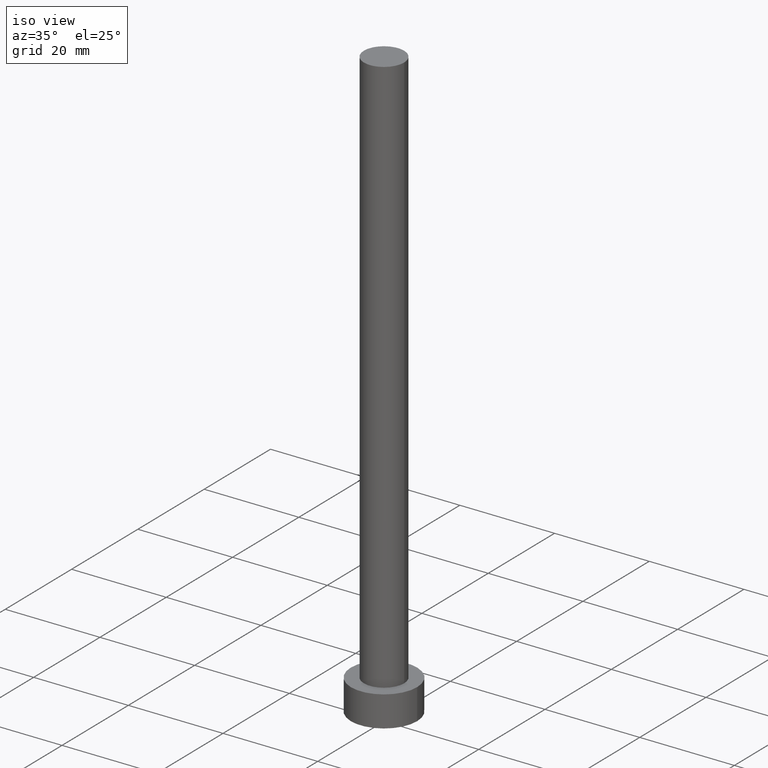
[diagram: clean part render]
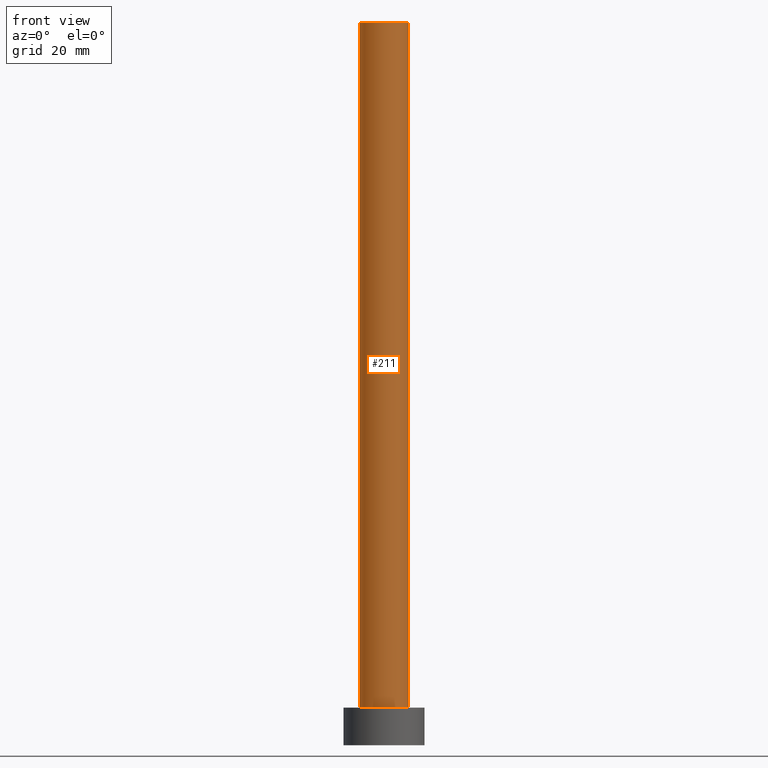
[diagram: tour spotlight — one face highlighted and labeled with its STEP entity id]
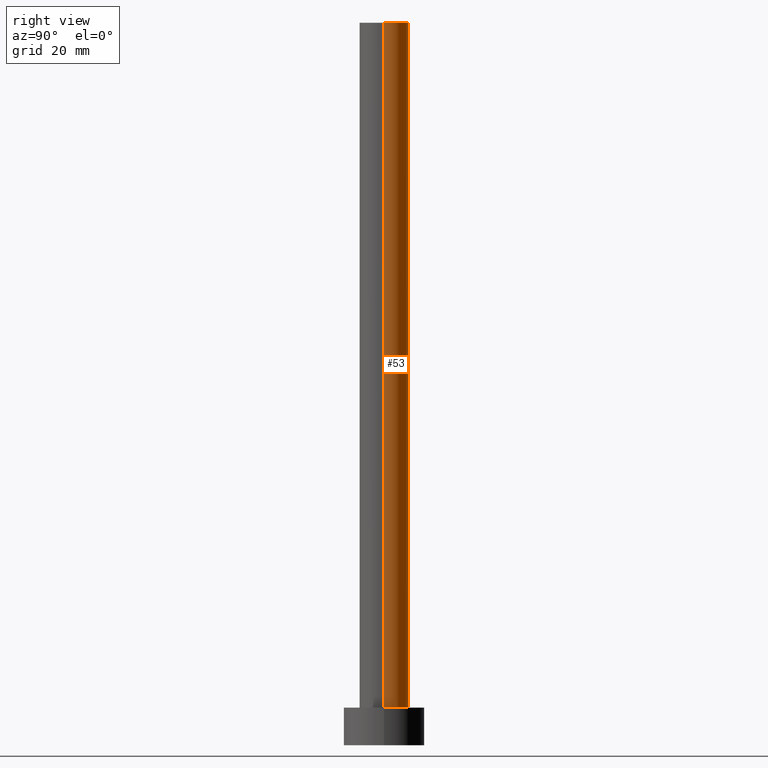
[diagram: tour spotlight — one face highlighted and labeled with its STEP entity id]
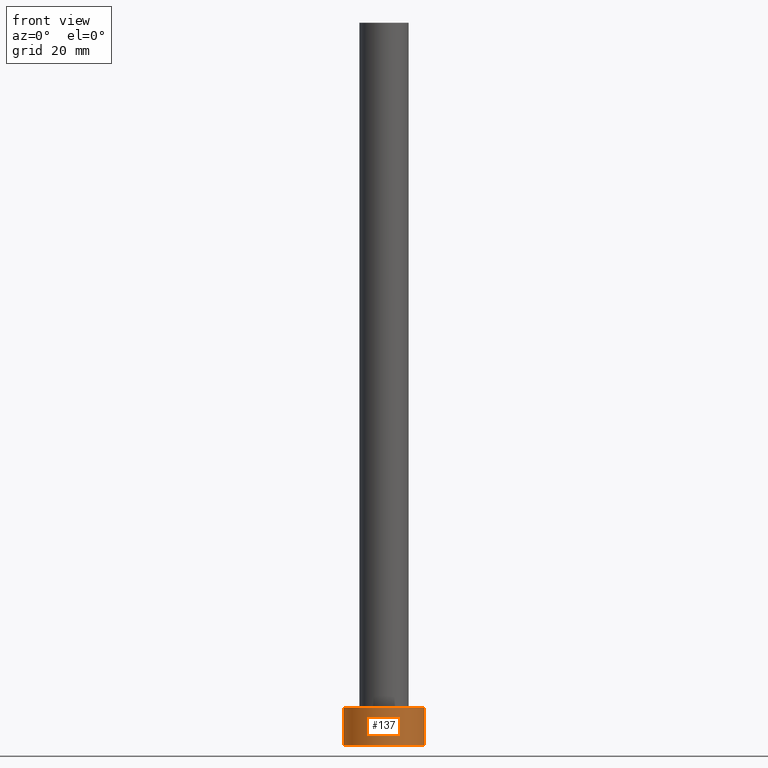
[diagram: tour spotlight — one face highlighted and labeled with its STEP entity id]
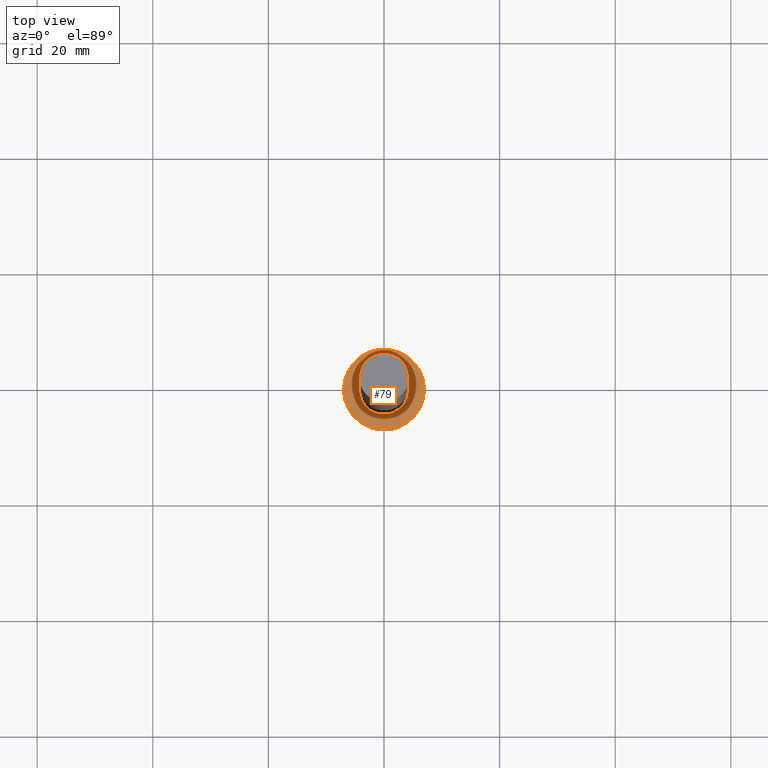
[diagram: tour spotlight — one face highlighted and labeled with its STEP entity id]
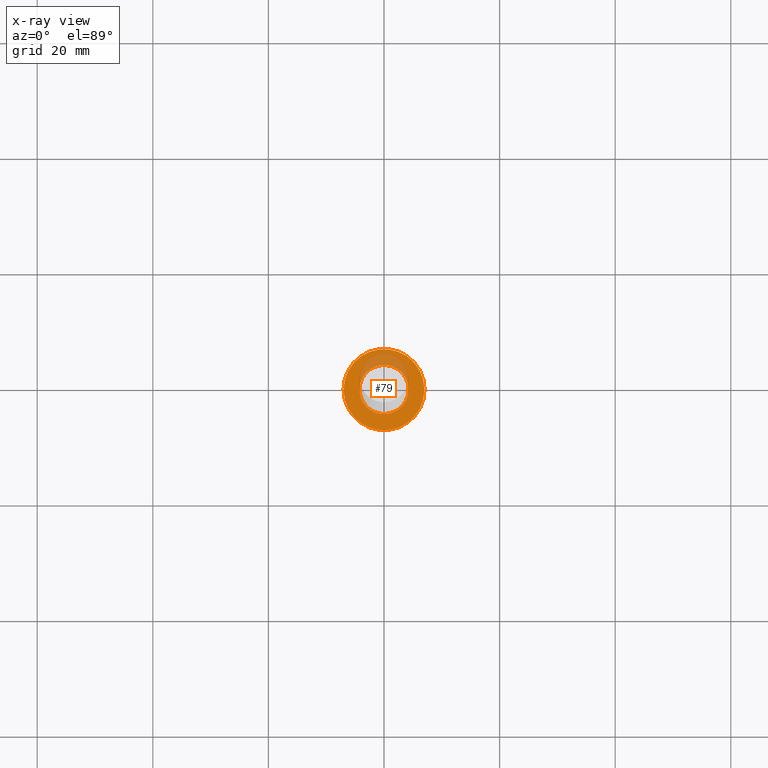
[diagram: x-ray of the same camera — body ghosted, this tour face saturated]
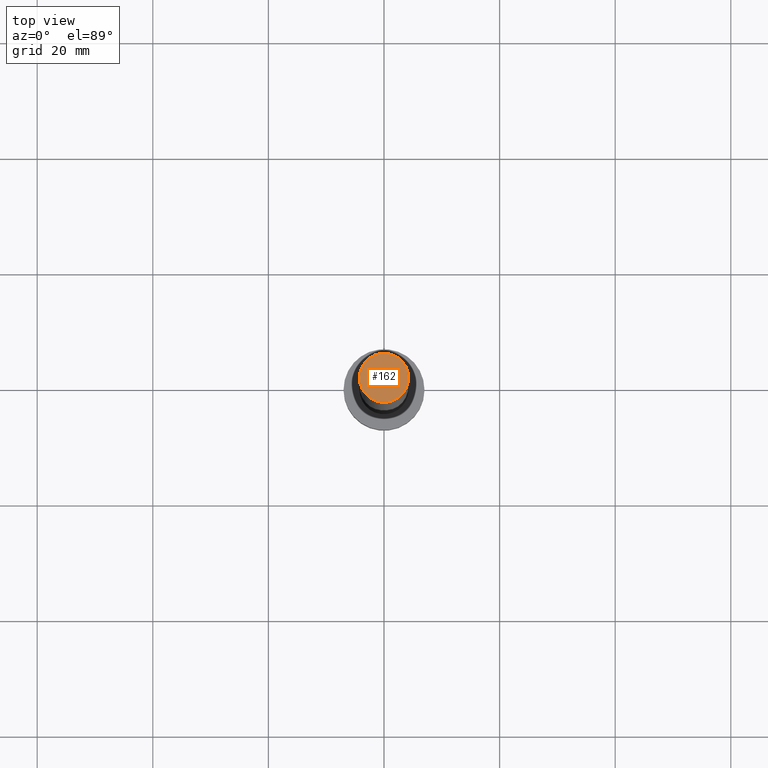
[diagram: tour spotlight — one face highlighted and labeled with its STEP entity id]
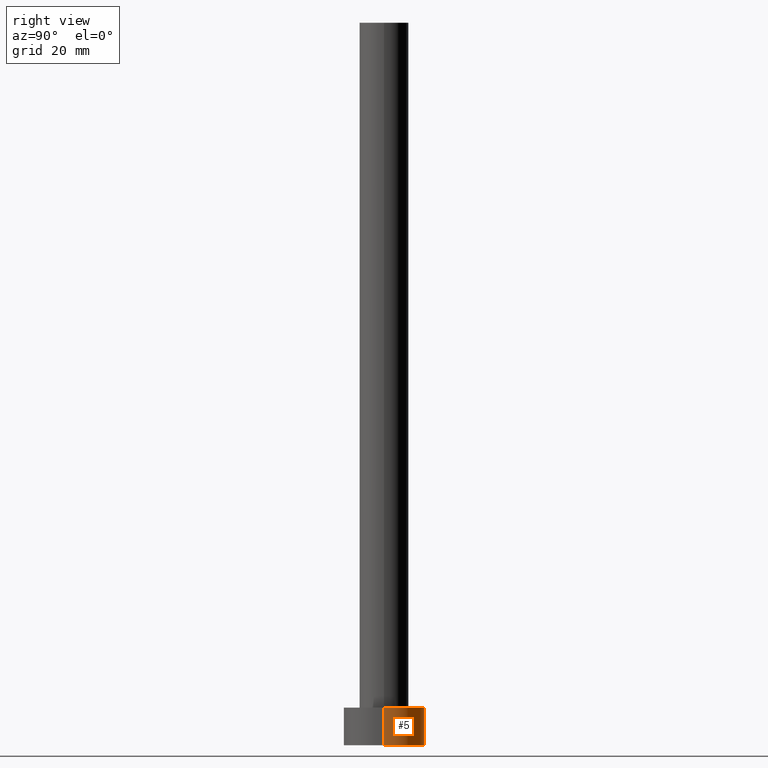
[diagram: tour spotlight — one face highlighted and labeled with its STEP entity id]
A machine part: a face-by-face anatomy tour. The part has 7 B-rep faces; the first image is the clean iso view, then the 6 largest visible faces are spotlighted one at a time (largest first), each with its STEP entity span.

Face 1 — front view, entity #211. In plain terms, the highlighted cylindrical surface (edge-blend (fillet) strip) has radius 4.25 mm, axis along (-0, -0, -1).
Definition (entity closure, byte-faithful):
#14 = DIRECTION ( 'NONE',  ( 0.000000000000000000, 0.000000000000000000, 1.000000000000000000 ) ) ;
#28 = DIRECTION ( 'NONE',  ( -0.000000000000000000, -0.000000000000000000, -1.000000000000000000 ) ) ;
#32 = EDGE_CURVE ( 'NONE', #105, #217, #47, .T. ) ;
#33 = DIRECTION ( 'NONE',  ( 0.000000000000000000, 0.000000000000000000, 1.000000000000000000 ) ) ;
#36 = CARTESIAN_POINT ( 'NONE',  ( -4.250000000000000000, 0.000000000000000000, 125.0000000000000000 ) ) ;
#47 = LINE ( 'NONE', #187, #250 ) ;
#52 = CARTESIAN_POINT ( 'NONE',  ( -4.250000000000000000, 0.000000000000000000, 125.0000000000000000 ) ) ;
#57 = DIRECTION ( 'NONE',  ( -1.000000000000000000, 0.000000000000000000, 0.000000000000000000 ) ) ;
#60 = EDGE_CURVE ( 'NONE', #128, #81, #141, .T. ) ;
#62 = VECTOR ( 'NONE', #28, 1000.000000000000000 ) ;
#70 = CIRCLE ( 'NONE', #197, 4.250000000000000000 ) ;
#76 = CYLINDRICAL_SURFACE ( 'NONE', #100, 4.250000000000000000 ) ;
#81 = VERTEX_POINT ( 'NONE', #94 ) ;
#83 = EDGE_LOOP ( 'NONE', ( #84, #101, #138, #214 ) ) ;
#84 = ORIENTED_EDGE ( 'NONE', *, *, #32, .F. ) ;
#90 = AXIS2_PLACEMENT_3D ( 'NONE', #192, #14, #209 ) ;
#94 = CARTESIAN_POINT ( 'NONE',  ( -4.250000000000000000, 0.000000000000000000, 6.500000000000000000 ) ) ;
#100 = AXIS2_PLACEMENT_3D ( 'NONE', #154, #228, #57 ) ;
#101 = ORIENTED_EDGE ( 'NONE', *, *, #118, .F. ) ;
#105 = VERTEX_POINT ( 'NONE', #148 ) ;
#110 = EDGE_CURVE ( 'NONE', #81, #217, #70, .T. ) ;
#116 = DIRECTION ( 'NONE',  ( 1.000000000000000000, 0.000000000000000000, 0.000000000000000000 ) ) ;
#118 = EDGE_CURVE ( 'NONE', #128, #105, #243, .T. ) ;
#128 = VERTEX_POINT ( 'NONE', #36 ) ;
#130 = DIRECTION ( 'NONE',  ( -0.000000000000000000, -0.000000000000000000, -1.000000000000000000 ) ) ;
#138 = ORIENTED_EDGE ( 'NONE', *, *, #60, .T. ) ;
#141 = LINE ( 'NONE', #52, #62 ) ;
#148 = CARTESIAN_POINT ( 'NONE',  ( 4.250000000000000000, 5.204748896376250699E-16, 125.0000000000000000 ) ) ;
#153 = CARTESIAN_POINT ( 'NONE',  ( 0.000000000000000000, 0.000000000000000000, 6.500000000000000000 ) ) ;
#154 = CARTESIAN_POINT ( 'NONE',  ( 0.000000000000000000, 0.000000000000000000, 125.0000000000000000 ) ) ;
#176 = CARTESIAN_POINT ( 'NONE',  ( 4.250000000000000000, 5.204748896376250699E-16, 6.500000000000000000 ) ) ;
#177 = FACE_OUTER_BOUND ( 'NONE', #83, .T. ) ;
#187 = CARTESIAN_POINT ( 'NONE',  ( 4.250000000000000000, 5.204748896376250699E-16, 125.0000000000000000 ) ) ;
#192 = CARTESIAN_POINT ( 'NONE',  ( 0.000000000000000000, 0.000000000000000000, 125.0000000000000000 ) ) ;
#197 = AXIS2_PLACEMENT_3D ( 'NONE', #153, #33, #116 ) ;
#209 = DIRECTION ( 'NONE',  ( 1.000000000000000000, 0.000000000000000000, 0.000000000000000000 ) ) ;
#211 = ADVANCED_FACE ( 'NONE', ( #177 ), #76, .T. ) ;
#214 = ORIENTED_EDGE ( 'NONE', *, *, #110, .T. ) ;
#217 = VERTEX_POINT ( 'NONE', #176 ) ;
#228 = DIRECTION ( 'NONE',  ( -0.000000000000000000, -0.000000000000000000, -1.000000000000000000 ) ) ;
#243 = CIRCLE ( 'NONE', #90, 4.250000000000000000 ) ;
#250 = VECTOR ( 'NONE', #130, 1000.000000000000000 ) ;

Face 2 — right view, entity #53. In plain terms, the highlighted cylindrical surface (edge-blend (fillet) strip) has radius 4.25 mm, axis along (-0, -0, -1).
Definition (entity closure, byte-faithful):
#20 = CYLINDRICAL_SURFACE ( 'NONE', #195, 4.250000000000000000 ) ;
#28 = DIRECTION ( 'NONE',  ( -0.000000000000000000, -0.000000000000000000, -1.000000000000000000 ) ) ;
#32 = EDGE_CURVE ( 'NONE', #105, #217, #47, .T. ) ;
#36 = CARTESIAN_POINT ( 'NONE',  ( -4.250000000000000000, 0.000000000000000000, 125.0000000000000000 ) ) ;
#42 = ORIENTED_EDGE ( 'NONE', *, *, #32, .T. ) ;
#43 = EDGE_CURVE ( 'NONE', #105, #128, #225, .T. ) ;
#47 = LINE ( 'NONE', #187, #250 ) ;
#52 = CARTESIAN_POINT ( 'NONE',  ( -4.250000000000000000, 0.000000000000000000, 125.0000000000000000 ) ) ;
#53 = ADVANCED_FACE ( 'NONE', ( #199 ), #20, .T. ) ;
#56 = AXIS2_PLACEMENT_3D ( 'NONE', #251, #80, #59 ) ;
#59 = DIRECTION ( 'NONE',  ( 1.000000000000000000, 0.000000000000000000, 0.000000000000000000 ) ) ;
#60 = EDGE_CURVE ( 'NONE', #128, #81, #141, .T. ) ;
#62 = VECTOR ( 'NONE', #28, 1000.000000000000000 ) ;
#65 = CARTESIAN_POINT ( 'NONE',  ( 0.000000000000000000, 0.000000000000000000, 125.0000000000000000 ) ) ;
#77 = EDGE_LOOP ( 'NONE', ( #111, #42, #253, #146 ) ) ;
#80 = DIRECTION ( 'NONE',  ( 0.000000000000000000, 0.000000000000000000, 1.000000000000000000 ) ) ;
#81 = VERTEX_POINT ( 'NONE', #94 ) ;
#94 = CARTESIAN_POINT ( 'NONE',  ( -4.250000000000000000, 0.000000000000000000, 6.500000000000000000 ) ) ;
#104 = DIRECTION ( 'NONE',  ( -0.000000000000000000, -0.000000000000000000, -1.000000000000000000 ) ) ;
#105 = VERTEX_POINT ( 'NONE', #148 ) ;
#111 = ORIENTED_EDGE ( 'NONE', *, *, #43, .F. ) ;
#123 = DIRECTION ( 'NONE',  ( -1.000000000000000000, 0.000000000000000000, 0.000000000000000000 ) ) ;
#128 = VERTEX_POINT ( 'NONE', #36 ) ;
#130 = DIRECTION ( 'NONE',  ( -0.000000000000000000, -0.000000000000000000, -1.000000000000000000 ) ) ;
#140 = DIRECTION ( 'NONE',  ( 0.000000000000000000, 0.000000000000000000, 1.000000000000000000 ) ) ;
#141 = LINE ( 'NONE', #52, #62 ) ;
#146 = ORIENTED_EDGE ( 'NONE', *, *, #60, .F. ) ;
#148 = CARTESIAN_POINT ( 'NONE',  ( 4.250000000000000000, 5.204748896376250699E-16, 125.0000000000000000 ) ) ;
#167 = AXIS2_PLACEMENT_3D ( 'NONE', #65, #140, #198 ) ;
#176 = CARTESIAN_POINT ( 'NONE',  ( 4.250000000000000000, 5.204748896376250699E-16, 6.500000000000000000 ) ) ;
#181 = CIRCLE ( 'NONE', #56, 4.250000000000000000 ) ;
#187 = CARTESIAN_POINT ( 'NONE',  ( 4.250000000000000000, 5.204748896376250699E-16, 125.0000000000000000 ) ) ;
#195 = AXIS2_PLACEMENT_3D ( 'NONE', #232, #104, #123 ) ;
#198 = DIRECTION ( 'NONE',  ( 1.000000000000000000, 0.000000000000000000, 0.000000000000000000 ) ) ;
#199 = FACE_OUTER_BOUND ( 'NONE', #77, .T. ) ;
#217 = VERTEX_POINT ( 'NONE', #176 ) ;
#225 = CIRCLE ( 'NONE', #167, 4.250000000000000000 ) ;
#232 = CARTESIAN_POINT ( 'NONE',  ( 0.000000000000000000, 0.000000000000000000, 125.0000000000000000 ) ) ;
#245 = EDGE_CURVE ( 'NONE', #217, #81, #181, .T. ) ;
#250 = VECTOR ( 'NONE', #130, 1000.000000000000000 ) ;
#251 = CARTESIAN_POINT ( 'NONE',  ( 0.000000000000000000, 0.000000000000000000, 6.500000000000000000 ) ) ;
#253 = ORIENTED_EDGE ( 'NONE', *, *, #245, .T. ) ;

Face 3 — front view, entity #137. In plain terms, the highlighted cylindrical surface (partial cylindrical patch) has radius 7 mm, axis along (-0, -0, -1).
Definition (entity closure, byte-faithful):
#3 = CIRCLE ( 'NONE', #147, 7.000000000000000000 ) ;
#8 = AXIS2_PLACEMENT_3D ( 'NONE', #193, #16, #71 ) ;
#16 = DIRECTION ( 'NONE',  ( -0.000000000000000000, -0.000000000000000000, -1.000000000000000000 ) ) ;
#17 = VERTEX_POINT ( 'NONE', #240 ) ;
#24 = EDGE_LOOP ( 'NONE', ( #219, #39, #58, #126 ) ) ;
#37 = DIRECTION ( 'NONE',  ( 1.000000000000000000, 0.000000000000000000, 0.000000000000000000 ) ) ;
#39 = ORIENTED_EDGE ( 'NONE', *, *, #106, .F. ) ;
#40 = LINE ( 'NONE', #196, #201 ) ;
#44 = VERTEX_POINT ( 'NONE', #234 ) ;
#55 = CARTESIAN_POINT ( 'NONE',  ( -7.000000000000000000, 0.000000000000000000, 6.500000000000000000 ) ) ;
#58 = ORIENTED_EDGE ( 'NONE', *, *, #99, .T. ) ;
#71 = DIRECTION ( 'NONE',  ( -1.000000000000000000, 0.000000000000000000, 0.000000000000000000 ) ) ;
#75 = CARTESIAN_POINT ( 'NONE',  ( -7.000000000000000000, 0.000000000000000000, 0.000000000000000000 ) ) ;
#82 = CARTESIAN_POINT ( 'NONE',  ( 7.000000000000000000, 8.572527594031471218E-16, 6.500000000000000000 ) ) ;
#87 = VERTEX_POINT ( 'NONE', #75 ) ;
#95 = DIRECTION ( 'NONE',  ( 0.000000000000000000, 0.000000000000000000, 1.000000000000000000 ) ) ;
#99 = EDGE_CURVE ( 'NONE', #17, #87, #171, .T. ) ;
#102 = VECTOR ( 'NONE', #247, 1000.000000000000000 ) ;
#106 = EDGE_CURVE ( 'NONE', #17, #182, #191, .T. ) ;
#117 = CYLINDRICAL_SURFACE ( 'NONE', #8, 7.000000000000000000 ) ;
#126 = ORIENTED_EDGE ( 'NONE', *, *, #215, .T. ) ;
#134 = DIRECTION ( 'NONE',  ( 1.000000000000000000, 0.000000000000000000, 0.000000000000000000 ) ) ;
#136 = CARTESIAN_POINT ( 'NONE',  ( 0.000000000000000000, 0.000000000000000000, 0.000000000000000000 ) ) ;
#137 = ADVANCED_FACE ( 'NONE', ( #173 ), #117, .T. ) ;
#147 = AXIS2_PLACEMENT_3D ( 'NONE', #136, #210, #37 ) ;
#171 = LINE ( 'NONE', #55, #102 ) ;
#173 = FACE_OUTER_BOUND ( 'NONE', #24, .T. ) ;
#182 = VERTEX_POINT ( 'NONE', #82 ) ;
#191 = CIRCLE ( 'NONE', #202, 7.000000000000000000 ) ;
#193 = CARTESIAN_POINT ( 'NONE',  ( 0.000000000000000000, 0.000000000000000000, 6.500000000000000000 ) ) ;
#196 = CARTESIAN_POINT ( 'NONE',  ( 7.000000000000000000, 8.572527594031471218E-16, 6.500000000000000000 ) ) ;
#201 = VECTOR ( 'NONE', #255, 1000.000000000000000 ) ;
#202 = AXIS2_PLACEMENT_3D ( 'NONE', #205, #95, #134 ) ;
#204 = EDGE_CURVE ( 'NONE', #182, #44, #40, .T. ) ;
#205 = CARTESIAN_POINT ( 'NONE',  ( 0.000000000000000000, 0.000000000000000000, 6.500000000000000000 ) ) ;
#210 = DIRECTION ( 'NONE',  ( 0.000000000000000000, 0.000000000000000000, 1.000000000000000000 ) ) ;
#215 = EDGE_CURVE ( 'NONE', #87, #44, #3, .T. ) ;
#219 = ORIENTED_EDGE ( 'NONE', *, *, #204, .F. ) ;
#234 = CARTESIAN_POINT ( 'NONE',  ( 7.000000000000000000, 8.572527594031471218E-16, 0.000000000000000000 ) ) ;
#240 = CARTESIAN_POINT ( 'NONE',  ( -7.000000000000000000, 0.000000000000000000, 6.500000000000000000 ) ) ;
#247 = DIRECTION ( 'NONE',  ( -0.000000000000000000, -0.000000000000000000, -1.000000000000000000 ) ) ;
#255 = DIRECTION ( 'NONE',  ( -0.000000000000000000, -0.000000000000000000, -1.000000000000000000 ) ) ;

Face 4 — top view, entity #79. An x-ray twin of the same camera follows (body ghosted, this face saturated) — the face is partly hidden behind the body. In plain terms, the highlighted planar face has unit normal (0, 0, 1).
Definition (entity closure, byte-faithful):
#17 = VERTEX_POINT ( 'NONE', #240 ) ;
#30 = DIRECTION ( 'NONE',  ( 1.000000000000000000, 0.000000000000000000, -0.000000000000000000 ) ) ;
#31 = CIRCLE ( 'NONE', #207, 7.000000000000000000 ) ;
#33 = DIRECTION ( 'NONE',  ( 0.000000000000000000, 0.000000000000000000, 1.000000000000000000 ) ) ;
#56 = AXIS2_PLACEMENT_3D ( 'NONE', #251, #80, #59 ) ;
#59 = DIRECTION ( 'NONE',  ( 1.000000000000000000, 0.000000000000000000, 0.000000000000000000 ) ) ;
#63 = ORIENTED_EDGE ( 'NONE', *, *, #245, .F. ) ;
#70 = CIRCLE ( 'NONE', #197, 4.250000000000000000 ) ;
#72 = FACE_BOUND ( 'NONE', #122, .T. ) ;
#79 = ADVANCED_FACE ( 'NONE', ( #72, #150 ), #131, .T. ) ;
#80 = DIRECTION ( 'NONE',  ( 0.000000000000000000, 0.000000000000000000, 1.000000000000000000 ) ) ;
#81 = VERTEX_POINT ( 'NONE', #94 ) ;
#82 = CARTESIAN_POINT ( 'NONE',  ( 7.000000000000000000, 8.572527594031471218E-16, 6.500000000000000000 ) ) ;
#94 = CARTESIAN_POINT ( 'NONE',  ( -4.250000000000000000, 0.000000000000000000, 6.500000000000000000 ) ) ;
#95 = DIRECTION ( 'NONE',  ( 0.000000000000000000, 0.000000000000000000, 1.000000000000000000 ) ) ;
#106 = EDGE_CURVE ( 'NONE', #17, #182, #191, .T. ) ;
#110 = EDGE_CURVE ( 'NONE', #81, #217, #70, .T. ) ;
#116 = DIRECTION ( 'NONE',  ( 1.000000000000000000, 0.000000000000000000, 0.000000000000000000 ) ) ;
#119 = DIRECTION ( 'NONE',  ( 1.000000000000000000, 0.000000000000000000, 0.000000000000000000 ) ) ;
#122 = EDGE_LOOP ( 'NONE', ( #155, #63 ) ) ;
#131 = PLANE ( 'NONE',  #149 ) ;
#133 = DIRECTION ( 'NONE',  ( 0.000000000000000000, 0.000000000000000000, 1.000000000000000000 ) ) ;
#134 = DIRECTION ( 'NONE',  ( 1.000000000000000000, 0.000000000000000000, 0.000000000000000000 ) ) ;
#135 = CARTESIAN_POINT ( 'NONE',  ( 0.000000000000000000, 0.000000000000000000, 6.500000000000000000 ) ) ;
#149 = AXIS2_PLACEMENT_3D ( 'NONE', #135, #133, #30 ) ;
#150 = FACE_OUTER_BOUND ( 'NONE', #158, .T. ) ;
#153 = CARTESIAN_POINT ( 'NONE',  ( 0.000000000000000000, 0.000000000000000000, 6.500000000000000000 ) ) ;
#155 = ORIENTED_EDGE ( 'NONE', *, *, #110, .F. ) ;
#158 = EDGE_LOOP ( 'NONE', ( #226, #178 ) ) ;
#168 = EDGE_CURVE ( 'NONE', #182, #17, #31, .T. ) ;
#174 = CARTESIAN_POINT ( 'NONE',  ( 0.000000000000000000, 0.000000000000000000, 6.500000000000000000 ) ) ;
#176 = CARTESIAN_POINT ( 'NONE',  ( 4.250000000000000000, 5.204748896376250699E-16, 6.500000000000000000 ) ) ;
#178 = ORIENTED_EDGE ( 'NONE', *, *, #168, .T. ) ;
#181 = CIRCLE ( 'NONE', #56, 4.250000000000000000 ) ;
#182 = VERTEX_POINT ( 'NONE', #82 ) ;
#191 = CIRCLE ( 'NONE', #202, 7.000000000000000000 ) ;
#197 = AXIS2_PLACEMENT_3D ( 'NONE', #153, #33, #116 ) ;
#202 = AXIS2_PLACEMENT_3D ( 'NONE', #205, #95, #134 ) ;
#205 = CARTESIAN_POINT ( 'NONE',  ( 0.000000000000000000, 0.000000000000000000, 6.500000000000000000 ) ) ;
#207 = AXIS2_PLACEMENT_3D ( 'NONE', #174, #249, #119 ) ;
#217 = VERTEX_POINT ( 'NONE', #176 ) ;
#226 = ORIENTED_EDGE ( 'NONE', *, *, #106, .T. ) ;
#240 = CARTESIAN_POINT ( 'NONE',  ( -7.000000000000000000, 0.000000000000000000, 6.500000000000000000 ) ) ;
#245 = EDGE_CURVE ( 'NONE', #217, #81, #181, .T. ) ;
#249 = DIRECTION ( 'NONE',  ( 0.000000000000000000, 0.000000000000000000, 1.000000000000000000 ) ) ;
#251 = CARTESIAN_POINT ( 'NONE',  ( 0.000000000000000000, 0.000000000000000000, 6.500000000000000000 ) ) ;

Face 5 — top view, entity #162. In plain terms, the highlighted planar face has unit normal (0, 0, 1).
Definition (entity closure, byte-faithful):
#14 = DIRECTION ( 'NONE',  ( 0.000000000000000000, 0.000000000000000000, 1.000000000000000000 ) ) ;
#19 = DIRECTION ( 'NONE',  ( 1.000000000000000000, 0.000000000000000000, -0.000000000000000000 ) ) ;
#36 = CARTESIAN_POINT ( 'NONE',  ( -4.250000000000000000, 0.000000000000000000, 125.0000000000000000 ) ) ;
#43 = EDGE_CURVE ( 'NONE', #105, #128, #225, .T. ) ;
#65 = CARTESIAN_POINT ( 'NONE',  ( 0.000000000000000000, 0.000000000000000000, 125.0000000000000000 ) ) ;
#86 = ORIENTED_EDGE ( 'NONE', *, *, #43, .T. ) ;
#90 = AXIS2_PLACEMENT_3D ( 'NONE', #192, #14, #209 ) ;
#105 = VERTEX_POINT ( 'NONE', #148 ) ;
#108 = ORIENTED_EDGE ( 'NONE', *, *, #118, .T. ) ;
#118 = EDGE_CURVE ( 'NONE', #128, #105, #243, .T. ) ;
#128 = VERTEX_POINT ( 'NONE', #36 ) ;
#132 = PLANE ( 'NONE',  #239 ) ;
#140 = DIRECTION ( 'NONE',  ( 0.000000000000000000, 0.000000000000000000, 1.000000000000000000 ) ) ;
#148 = CARTESIAN_POINT ( 'NONE',  ( 4.250000000000000000, 5.204748896376250699E-16, 125.0000000000000000 ) ) ;
#160 = CARTESIAN_POINT ( 'NONE',  ( 0.000000000000000000, 0.000000000000000000, 125.0000000000000000 ) ) ;
#162 = ADVANCED_FACE ( 'NONE', ( #224 ), #132, .T. ) ;
#165 = EDGE_LOOP ( 'NONE', ( #108, #86 ) ) ;
#167 = AXIS2_PLACEMENT_3D ( 'NONE', #65, #140, #198 ) ;
#192 = CARTESIAN_POINT ( 'NONE',  ( 0.000000000000000000, 0.000000000000000000, 125.0000000000000000 ) ) ;
#198 = DIRECTION ( 'NONE',  ( 1.000000000000000000, 0.000000000000000000, 0.000000000000000000 ) ) ;
#209 = DIRECTION ( 'NONE',  ( 1.000000000000000000, 0.000000000000000000, 0.000000000000000000 ) ) ;
#224 = FACE_OUTER_BOUND ( 'NONE', #165, .T. ) ;
#225 = CIRCLE ( 'NONE', #167, 4.250000000000000000 ) ;
#231 = DIRECTION ( 'NONE',  ( 0.000000000000000000, 0.000000000000000000, 1.000000000000000000 ) ) ;
#239 = AXIS2_PLACEMENT_3D ( 'NONE', #160, #231, #19 ) ;
#243 = CIRCLE ( 'NONE', #90, 4.250000000000000000 ) ;

Face 6 — right view, entity #5. In plain terms, the highlighted cylindrical surface (partial cylindrical patch) has radius 7 mm, axis along (-0, -0, -1).
Definition (entity closure, byte-faithful):
#5 = ADVANCED_FACE ( 'NONE', ( #161 ), #238, .T. ) ;
#6 = DIRECTION ( 'NONE',  ( -0.000000000000000000, -0.000000000000000000, -1.000000000000000000 ) ) ;
#10 = DIRECTION ( 'NONE',  ( 0.000000000000000000, 0.000000000000000000, 1.000000000000000000 ) ) ;
#17 = VERTEX_POINT ( 'NONE', #240 ) ;
#21 = ORIENTED_EDGE ( 'NONE', *, *, #168, .F. ) ;
#31 = CIRCLE ( 'NONE', #207, 7.000000000000000000 ) ;
#40 = LINE ( 'NONE', #196, #201 ) ;
#44 = VERTEX_POINT ( 'NONE', #234 ) ;
#55 = CARTESIAN_POINT ( 'NONE',  ( -7.000000000000000000, 0.000000000000000000, 6.500000000000000000 ) ) ;
#75 = CARTESIAN_POINT ( 'NONE',  ( -7.000000000000000000, 0.000000000000000000, 0.000000000000000000 ) ) ;
#82 = CARTESIAN_POINT ( 'NONE',  ( 7.000000000000000000, 8.572527594031471218E-16, 6.500000000000000000 ) ) ;
#87 = VERTEX_POINT ( 'NONE', #75 ) ;
#91 = DIRECTION ( 'NONE',  ( 1.000000000000000000, 0.000000000000000000, 0.000000000000000000 ) ) ;
#99 = EDGE_CURVE ( 'NONE', #17, #87, #171, .T. ) ;
#102 = VECTOR ( 'NONE', #247, 1000.000000000000000 ) ;
#107 = ORIENTED_EDGE ( 'NONE', *, *, #99, .F. ) ;
#115 = CIRCLE ( 'NONE', #152, 7.000000000000000000 ) ;
#119 = DIRECTION ( 'NONE',  ( 1.000000000000000000, 0.000000000000000000, 0.000000000000000000 ) ) ;
#143 = ORIENTED_EDGE ( 'NONE', *, *, #204, .T. ) ;
#151 = EDGE_CURVE ( 'NONE', #44, #87, #115, .T. ) ;
#152 = AXIS2_PLACEMENT_3D ( 'NONE', #189, #10, #91 ) ;
#161 = FACE_OUTER_BOUND ( 'NONE', #180, .T. ) ;
#164 = DIRECTION ( 'NONE',  ( -1.000000000000000000, 0.000000000000000000, 0.000000000000000000 ) ) ;
#168 = EDGE_CURVE ( 'NONE', #182, #17, #31, .T. ) ;
#171 = LINE ( 'NONE', #55, #102 ) ;
#174 = CARTESIAN_POINT ( 'NONE',  ( 0.000000000000000000, 0.000000000000000000, 6.500000000000000000 ) ) ;
#180 = EDGE_LOOP ( 'NONE', ( #21, #143, #237, #107 ) ) ;
#182 = VERTEX_POINT ( 'NONE', #82 ) ;
#185 = CARTESIAN_POINT ( 'NONE',  ( 0.000000000000000000, 0.000000000000000000, 6.500000000000000000 ) ) ;
#189 = CARTESIAN_POINT ( 'NONE',  ( 0.000000000000000000, 0.000000000000000000, 0.000000000000000000 ) ) ;
#196 = CARTESIAN_POINT ( 'NONE',  ( 7.000000000000000000, 8.572527594031471218E-16, 6.500000000000000000 ) ) ;
#201 = VECTOR ( 'NONE', #255, 1000.000000000000000 ) ;
#204 = EDGE_CURVE ( 'NONE', #182, #44, #40, .T. ) ;
#207 = AXIS2_PLACEMENT_3D ( 'NONE', #174, #249, #119 ) ;
#229 = AXIS2_PLACEMENT_3D ( 'NONE', #185, #6, #164 ) ;
#234 = CARTESIAN_POINT ( 'NONE',  ( 7.000000000000000000, 8.572527594031471218E-16, 0.000000000000000000 ) ) ;
#237 = ORIENTED_EDGE ( 'NONE', *, *, #151, .T. ) ;
#238 = CYLINDRICAL_SURFACE ( 'NONE', #229, 7.000000000000000000 ) ;
#240 = CARTESIAN_POINT ( 'NONE',  ( -7.000000000000000000, 0.000000000000000000, 6.500000000000000000 ) ) ;
#247 = DIRECTION ( 'NONE',  ( -0.000000000000000000, -0.000000000000000000, -1.000000000000000000 ) ) ;
#249 = DIRECTION ( 'NONE',  ( 0.000000000000000000, 0.000000000000000000, 1.000000000000000000 ) ) ;
#255 = DIRECTION ( 'NONE',  ( -0.000000000000000000, -0.000000000000000000, -1.000000000000000000 ) ) ;